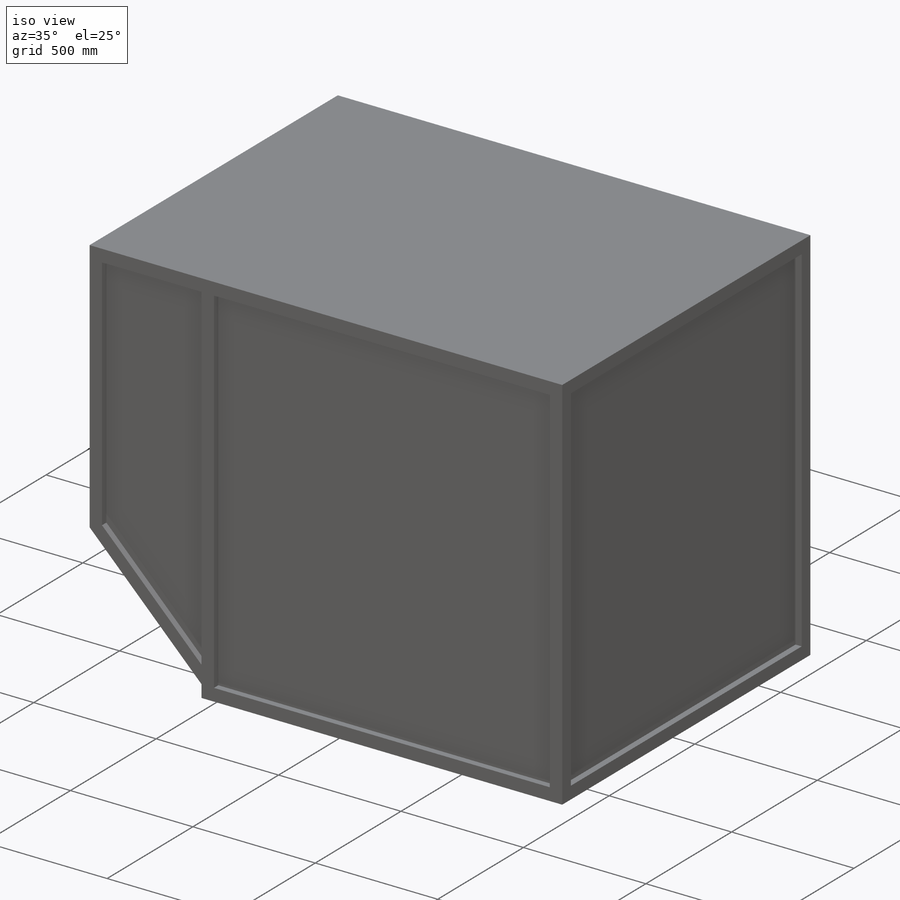
[diagram: iso view]
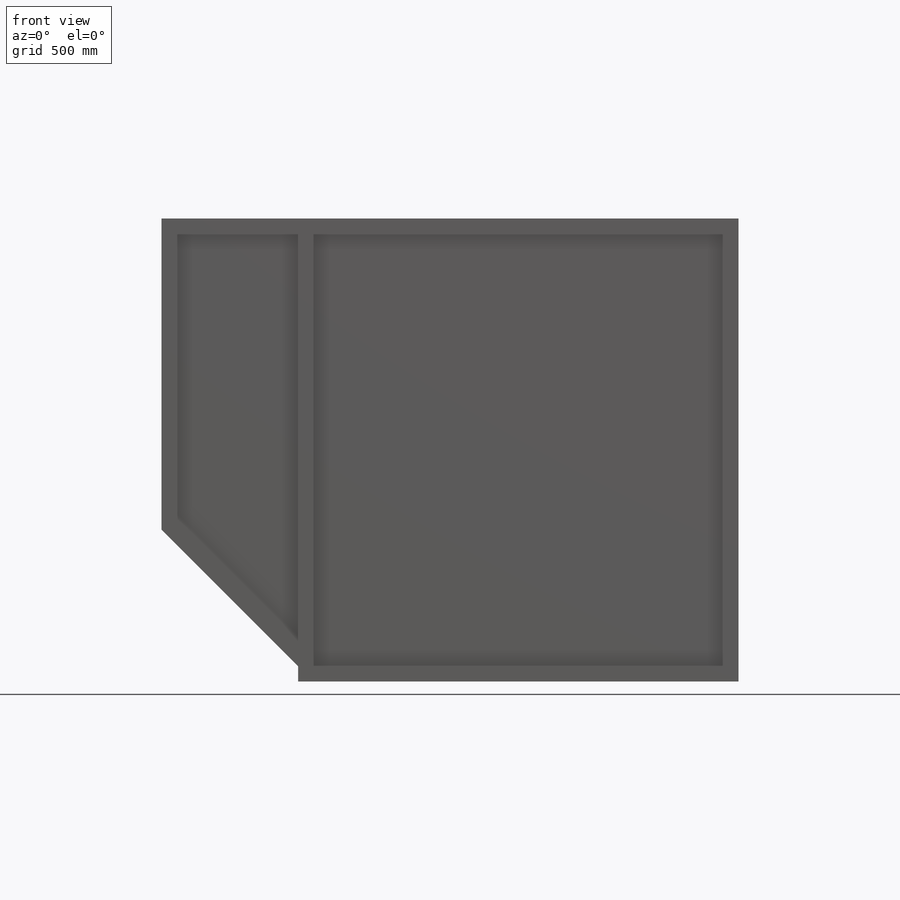
[diagram: front view]
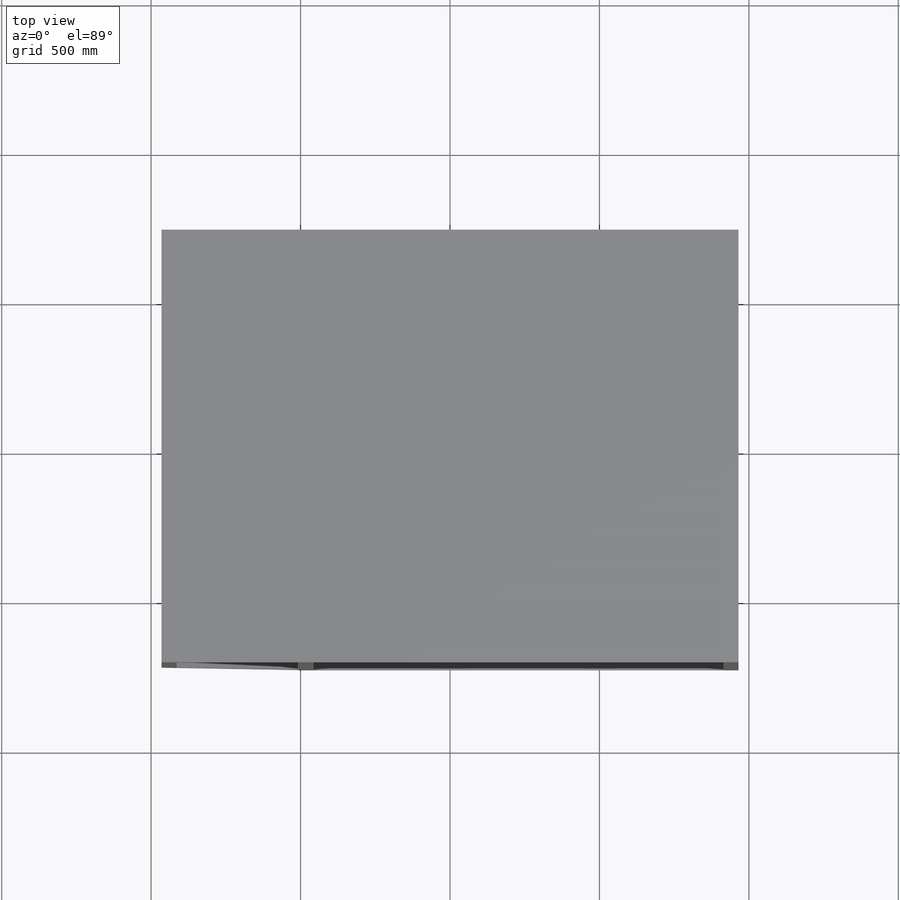
[diagram: top view]
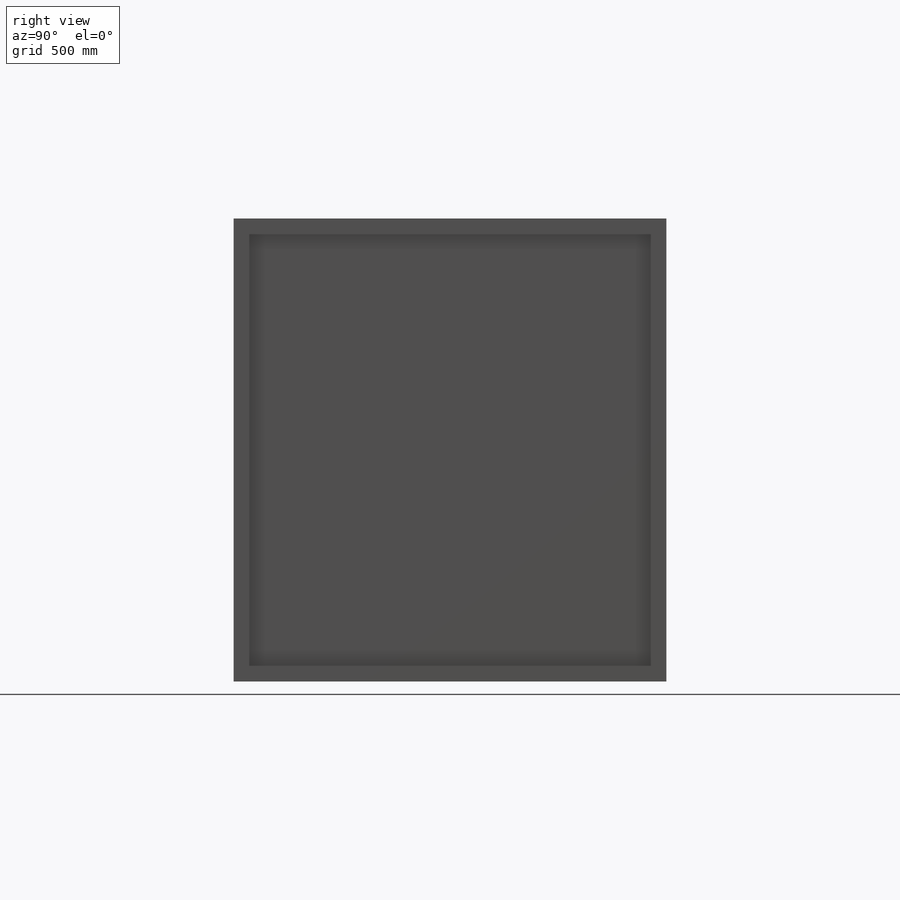
[diagram: right view]
SOLIDWORKS PART (.sldprt)
format: sldprt  version: not decoded by parser v0  size: 222,720 bytes
history: native  units: mm
features: sketch x6, cut_extrude x5, material x1, extrude x1 (+16 scaffold rows collapsed)
feature tree (29):
  scaffold x16  (default folders/planes/origin — collapsed)
  material  "Material <not specified>"
  sketch  "Sketch1"  dims[D1=1930.4mm D2=1447.8mm]
  extrude  "Boss-Extrude1"  Depth=1549.4mm
  sketch  "Sketch2"  dims[c1.D1=1473.2mm c1.D2=1041.4mm c1.D3=~66.253892mm c2.D3=90.0deg c3.D3=50.8mm]
  cut_extrude  "Cut-Extrude1"  [1 undecoded]
  sketch  "Sketch3"  dims[c1.D2=50.8mm c1.D1=0.0mm c2.D2=50.8mm]
  cut_extrude  "Cut-Extrude2"  Depth=25.4mm
  cut_extrude  "Cut-Extrude3"  [1 undecoded]
  sketch  "Sketch3<2>"  dims[D1=25.4mm]
  sketch  "Sketch4"  dims[D1=50.8mm]
  sketch  "Sketch5"  dims[D1=0.0mm D2=50.8mm]
  cut_extrude  "Cut-Extrude4"  Depth=25.4mm
  cut_extrude  "Cut-Extrude5"  Depth=25.4mm
decode coverage: 10 of 12 modeling features carry decoded parameters
note: ~ marks probable driven/reference dimensions
note: 2 parameter values undecoded
note: suppression state not decoded; provenance and decode notes live in map.json
